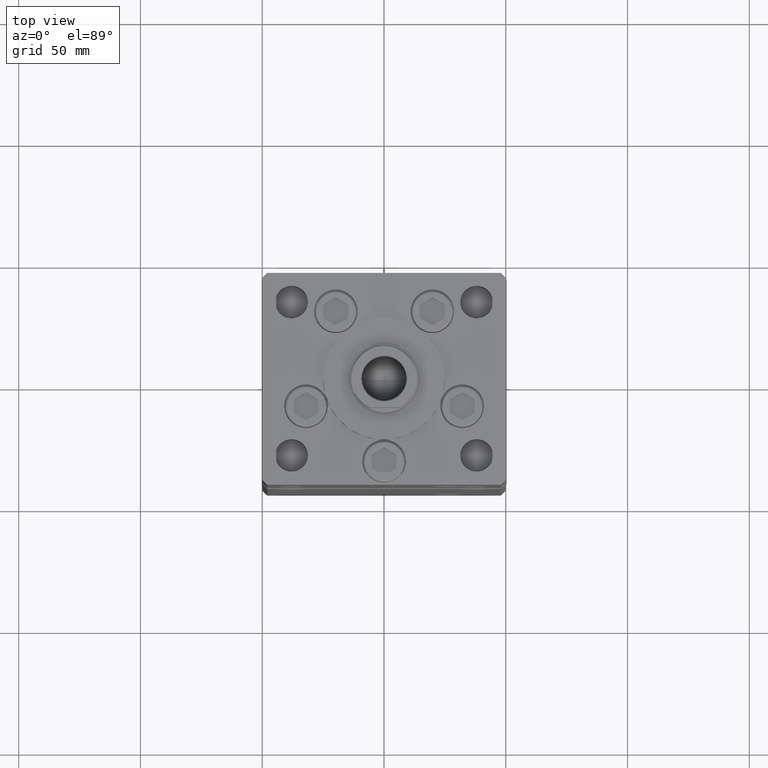
[diagram: clean part render]
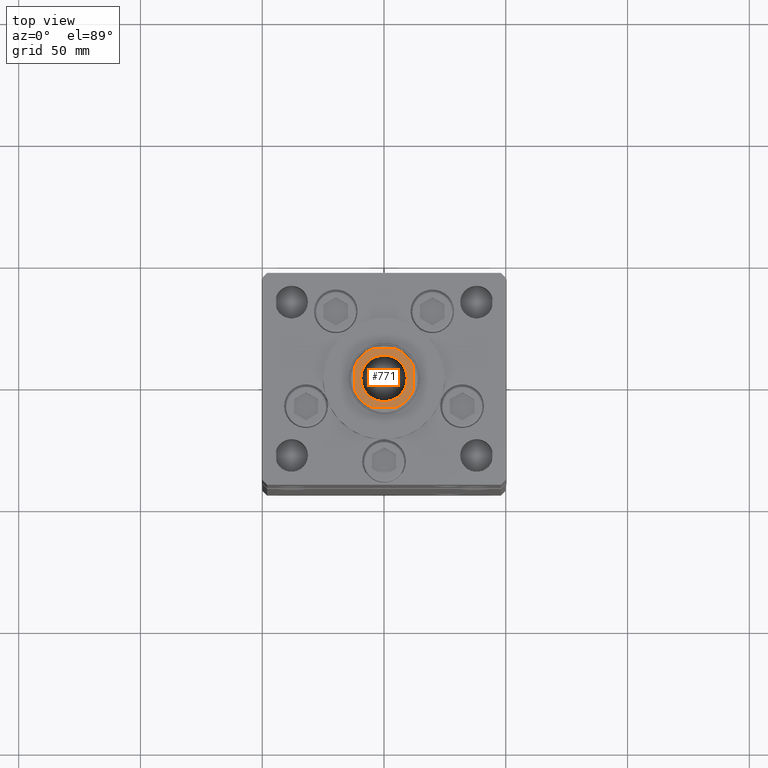
[diagram: same view with one face highlighted and labeled with its STEP entity id]
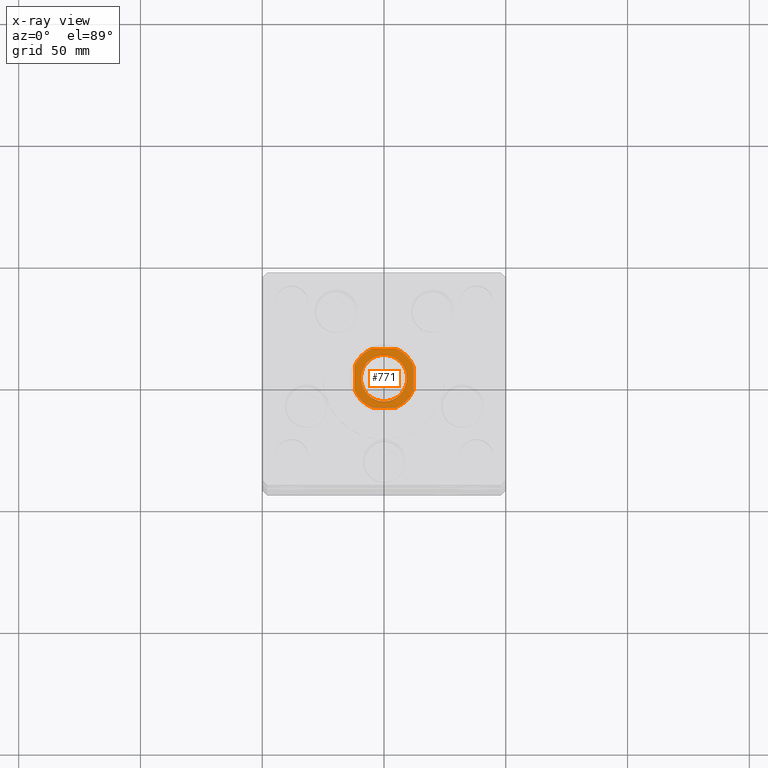
[diagram: x-ray of the same camera — body ghosted, the highlighted face saturated]
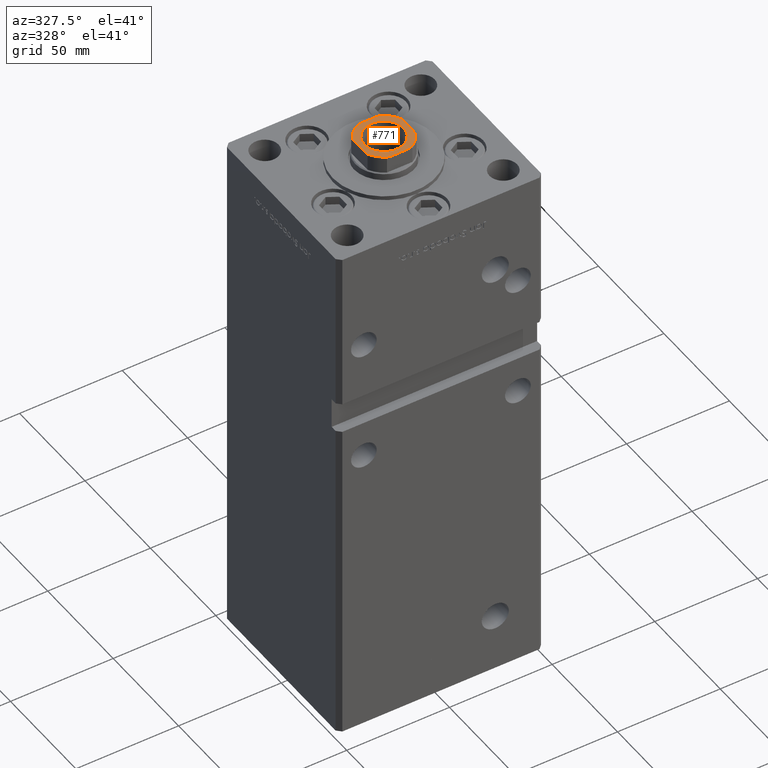
[diagram: same view with one face highlighted and labeled with its STEP entity id]
A machine part, top view. The second image highlights one B-rep face of the part: STEP entity #771.
The next image is the same camera in x-ray: the body ghosted, the highlighted face saturated — about 0% of this face is hidden behind the body in this view.
A second angle (auxiliary view) of the same face is appended — the face is thin or edge-on in the first view.
In plain terms, the highlighted planar face has unit normal (0, 0, 1).
Its self-contained STEP definition (entity closure, byte-faithful):
#771 = ADVANCED_FACE ( 'NONE', ( #33112, #44145 ), #7851, .T. ) ;
#1059 = CARTESIAN_POINT ( 'NONE',  ( 0.000000000000000000, 0.000000000000000000, 235.2500000000000284 ) ) ;
#2602 = EDGE_CURVE ( 'NONE', #35226, #9291, #3656, .T. ) ;
#3196 = EDGE_CURVE ( 'NONE', #42239, #25926, #17239, .T. ) ;
#3656 = CIRCLE ( 'NONE', #18988, 13.00000000000000000 ) ;
#3962 = ORIENTED_EDGE ( 'NONE', *, *, #5030, .T. ) ;
#4717 = DIRECTION ( 'NONE',  ( -0.000000000000000000, 0.000000000000000000, 1.000000000000000000 ) ) ;
#5030 = EDGE_CURVE ( 'NONE', #25926, #31555, #43065, .T. ) ;
#5561 = CARTESIAN_POINT ( 'NONE',  ( -11.99999999999999822, -5.000000000000001776, 235.2500000000000284 ) ) ;
#5830 = CARTESIAN_POINT ( 'NONE',  ( 0.000000000000000000, 0.000000000000000000, 235.2500000000000284 ) ) ;
#6211 = DIRECTION ( 'NONE',  ( -0.000000000000000000, 0.000000000000000000, 1.000000000000000000 ) ) ;
#7321 = DIRECTION ( 'NONE',  ( -0.000000000000000000, 0.000000000000000000, 1.000000000000000000 ) ) ;
#7532 = DIRECTION ( 'NONE',  ( -0.000000000000000000, 0.000000000000000000, 1.000000000000000000 ) ) ;
#7680 = CARTESIAN_POINT ( 'NONE',  ( 12.00000000000000178, -4.999999999999990230, 235.2500000000000284 ) ) ;
#7791 = CARTESIAN_POINT ( 'NONE',  ( 0.000000000000000000, 0.000000000000000000, 235.2500000000000284 ) ) ;
#7851 = PLANE ( 'NONE',  #18200 ) ;
#8398 = DIRECTION ( 'NONE',  ( -1.445602896647339163E-16, 1.000000000000000000, -0.000000000000000000 ) ) ;
#8496 = CARTESIAN_POINT ( 'NONE',  ( 0.000000000000000000, 0.000000000000000000, 235.2500000000000284 ) ) ;
#8938 = CARTESIAN_POINT ( 'NONE',  ( -11.99999999999999822, 11.99999999999999822, 235.2500000000000284 ) ) ;
#9291 = VERTEX_POINT ( 'NONE', #47075 ) ;
#9692 = EDGE_LOOP ( 'NONE', ( #9693, #51580 ) ) ;
#9693 = ORIENTED_EDGE ( 'NONE', *, *, #48298, .T. ) ;
#9762 = EDGE_CURVE ( 'NONE', #43402, #35721, #33770, .T. ) ;
#11219 = EDGE_CURVE ( 'NONE', #32734, #42239, #18351, .T. ) ;
#11641 = CARTESIAN_POINT ( 'NONE',  ( 0.000000000000000000, 0.000000000000000000, 235.2500000000000284 ) ) ;
#12084 = CARTESIAN_POINT ( 'NONE',  ( 4.999999999999993783, -12.00000000000000178, 235.2500000000000284 ) ) ;
#13267 = CARTESIAN_POINT ( 'NONE',  ( -4.999999999999992895, -12.00000000000000178, 235.2500000000000284 ) ) ;
#13471 = DIRECTION ( 'NONE',  ( 1.000000000000000000, 0.000000000000000000, 0.000000000000000000 ) ) ;
#13873 = CARTESIAN_POINT ( 'NONE',  ( -9.550000000000002487, 1.169537693185722755E-15, 235.2500000000000284 ) ) ;
#13896 = VECTOR ( 'NONE', #30623, 1000.000000000000000 ) ;
#14210 = CARTESIAN_POINT ( 'NONE',  ( -11.99999999999999645, -12.00000000000000178, 235.2500000000000284 ) ) ;
#14736 = ORIENTED_EDGE ( 'NONE', *, *, #11219, .T. ) ;
#16497 = ORIENTED_EDGE ( 'NONE', *, *, #38201, .T. ) ;
#17239 = LINE ( 'NONE', #8938, #21688 ) ;
#17722 = DIRECTION ( 'NONE',  ( -0.000000000000000000, 0.000000000000000000, 1.000000000000000000 ) ) ;
#18200 = AXIS2_PLACEMENT_3D ( 'NONE', #44409, #7321, #52454 ) ;
#18252 = LINE ( 'NONE', #14210, #13896 ) ;
#18351 = CIRCLE ( 'NONE', #52684, 13.00000000000000000 ) ;
#18896 = ORIENTED_EDGE ( 'NONE', *, *, #21532, .T. ) ;
#18988 = AXIS2_PLACEMENT_3D ( 'NONE', #1059, #17722, #42190 ) ;
#19403 = ORIENTED_EDGE ( 'NONE', *, *, #32643, .T. ) ;
#19891 = AXIS2_PLACEMENT_3D ( 'NONE', #8496, #4717, #40507 ) ;
#21532 = EDGE_CURVE ( 'NONE', #31555, #24583, #18252, .T. ) ;
#21688 = VECTOR ( 'NONE', #25334, 1000.000000000000000 ) ;
#21948 = VECTOR ( 'NONE', #8398, 1000.000000000000000 ) ;
#22075 = CARTESIAN_POINT ( 'NONE',  ( 0.000000000000000000, 0.000000000000000000, 235.2500000000000284 ) ) ;
#22081 = CARTESIAN_POINT ( 'NONE',  ( -5.000000000000001776, 11.99999999999999822, 235.2500000000000284 ) ) ;
#22098 = CARTESIAN_POINT ( 'NONE',  ( 12.00000000000000178, 4.999999999999994671, 235.2500000000000284 ) ) ;
#23918 = DIRECTION ( 'NONE',  ( 1.000000000000000000, 0.000000000000000000, 0.000000000000000000 ) ) ;
#24449 = AXIS2_PLACEMENT_3D ( 'NONE', #22075, #6211, #13471 ) ;
#24583 = VERTEX_POINT ( 'NONE', #12084 ) ;
#25334 = DIRECTION ( 'NONE',  ( 7.228014483236695816E-17, -1.000000000000000000, 0.000000000000000000 ) ) ;
#25926 = VERTEX_POINT ( 'NONE', #5561 ) ;
#27777 = DIRECTION ( 'NONE',  ( 0.000000000000000000, -0.000000000000000000, -1.000000000000000000 ) ) ;
#28311 = DIRECTION ( 'NONE',  ( 1.000000000000000000, 0.000000000000000000, 0.000000000000000000 ) ) ;
#29255 = AXIS2_PLACEMENT_3D ( 'NONE', #11641, #27777, #28311 ) ;
#29786 = EDGE_CURVE ( 'NONE', #24583, #50499, #44173, .T. ) ;
#30549 = VECTOR ( 'NONE', #48488, 1000.000000000000000 ) ;
#30623 = DIRECTION ( 'NONE',  ( 1.000000000000000000, 7.228014483236695816E-17, 0.000000000000000000 ) ) ;
#31554 = CARTESIAN_POINT ( 'NONE',  ( -11.99999999999999822, 11.99999999999999822, 235.2500000000000284 ) ) ;
#31555 = VERTEX_POINT ( 'NONE', #13267 ) ;
#32106 = LINE ( 'NONE', #31554, #30549 ) ;
#32643 = EDGE_CURVE ( 'NONE', #50499, #35226, #41711, .T. ) ;
#32734 = VERTEX_POINT ( 'NONE', #22081 ) ;
#33112 = FACE_BOUND ( 'NONE', #9692, .T. ) ;
#33770 = CIRCLE ( 'NONE', #39790, 9.550000000000002487 ) ;
#35226 = VERTEX_POINT ( 'NONE', #22098 ) ;
#35696 = CARTESIAN_POINT ( 'NONE',  ( -11.99999999999999822, 5.000000000000000888, 235.2500000000000284 ) ) ;
#35721 = VERTEX_POINT ( 'NONE', #37047 ) ;
#36266 = ORIENTED_EDGE ( 'NONE', *, *, #3196, .T. ) ;
#37047 = CARTESIAN_POINT ( 'NONE',  ( 9.550000000000002487, 0.000000000000000000, 235.2500000000000284 ) ) ;
#38197 = ORIENTED_EDGE ( 'NONE', *, *, #2602, .T. ) ;
#38201 = EDGE_CURVE ( 'NONE', #9291, #32734, #32106, .T. ) ;
#38628 = DIRECTION ( 'NONE',  ( 0.000000000000000000, -0.000000000000000000, -1.000000000000000000 ) ) ;
#39790 = AXIS2_PLACEMENT_3D ( 'NONE', #5830, #38628, #45883 ) ;
#40507 = DIRECTION ( 'NONE',  ( 1.000000000000000000, 0.000000000000000000, 0.000000000000000000 ) ) ;
#40511 = EDGE_LOOP ( 'NONE', ( #36266, #3962, #18896, #49618, #19403, #38197, #16497, #14736 ) ) ;
#41711 = LINE ( 'NONE', #45220, #21948 ) ;
#42190 = DIRECTION ( 'NONE',  ( 1.000000000000000000, 0.000000000000000000, 0.000000000000000000 ) ) ;
#42239 = VERTEX_POINT ( 'NONE', #35696 ) ;
#43065 = CIRCLE ( 'NONE', #19891, 13.00000000000000000 ) ;
#43402 = VERTEX_POINT ( 'NONE', #13873 ) ;
#44145 = FACE_OUTER_BOUND ( 'NONE', #40511, .T. ) ;
#44173 = CIRCLE ( 'NONE', #24449, 13.00000000000000000 ) ;
#44409 = CARTESIAN_POINT ( 'NONE',  ( 0.000000000000000000, 0.000000000000000000, 235.2500000000000284 ) ) ;
#45220 = CARTESIAN_POINT ( 'NONE',  ( 12.00000000000000000, 12.00000000000000000, 235.2500000000000284 ) ) ;
#45883 = DIRECTION ( 'NONE',  ( 1.000000000000000000, 0.000000000000000000, 0.000000000000000000 ) ) ;
#47075 = CARTESIAN_POINT ( 'NONE',  ( 5.000000000000002665, 12.00000000000000000, 235.2500000000000284 ) ) ;
#48298 = EDGE_CURVE ( 'NONE', #35721, #43402, #52411, .T. ) ;
#48488 = DIRECTION ( 'NONE',  ( -1.000000000000000000, -7.228014483236695816E-17, -0.000000000000000000 ) ) ;
#49618 = ORIENTED_EDGE ( 'NONE', *, *, #29786, .T. ) ;
#50499 = VERTEX_POINT ( 'NONE', #7680 ) ;
#51580 = ORIENTED_EDGE ( 'NONE', *, *, #9762, .T. ) ;
#52411 = CIRCLE ( 'NONE', #29255, 9.550000000000002487 ) ;
#52454 = DIRECTION ( 'NONE',  ( 1.000000000000000000, 0.000000000000000000, 0.000000000000000000 ) ) ;
#52684 = AXIS2_PLACEMENT_3D ( 'NONE', #7791, #7532, #23918 ) ;